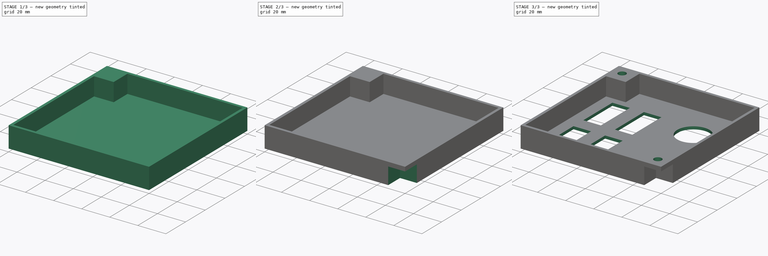
[diagram: build sequence overview — one tinted view per stage of 3, left to right]
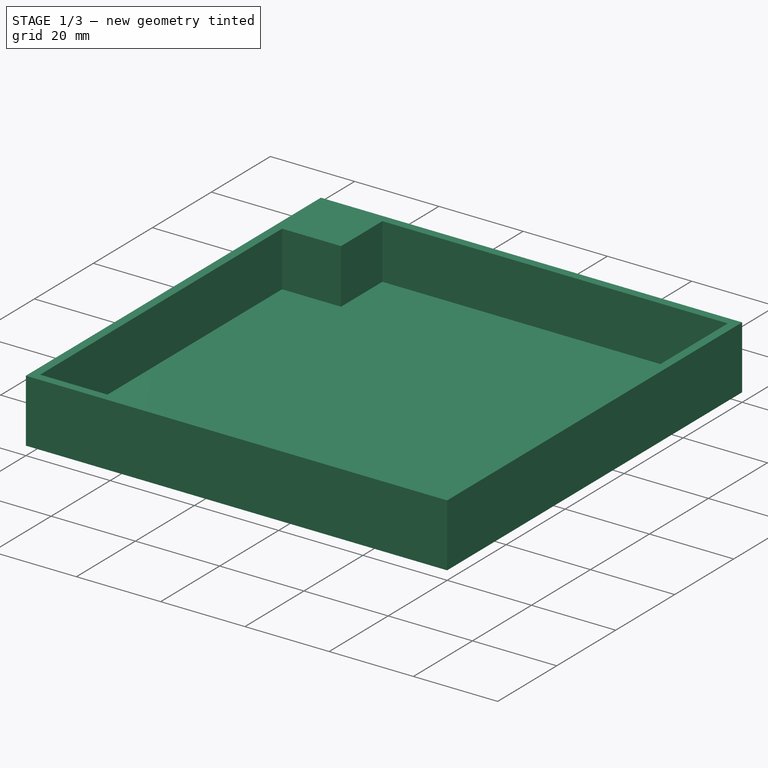
[diagram: stage 1 of 3 — iso view after this stage's code; geometry added in this stage tinted green]
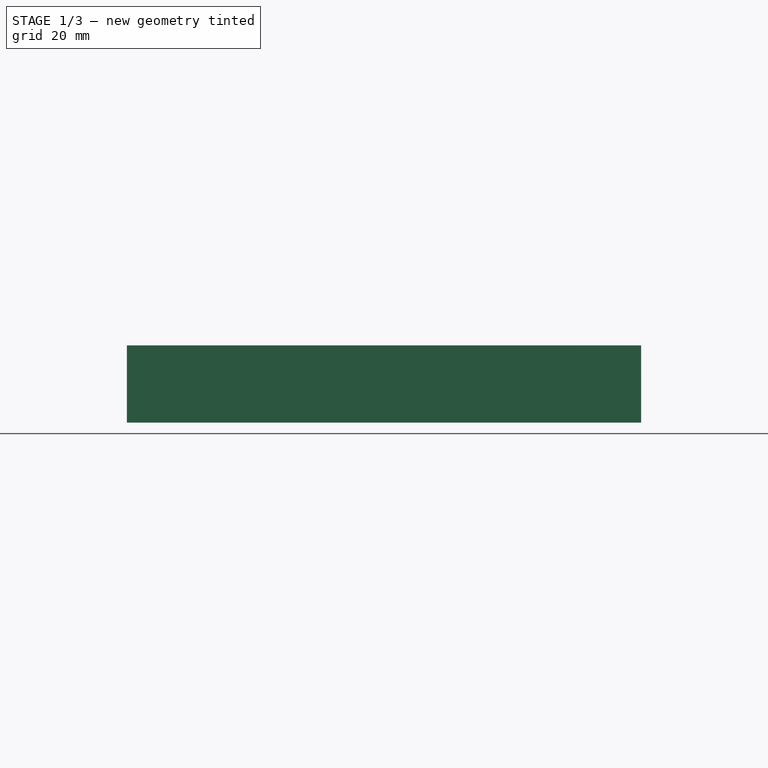
[diagram: stage 1 of 3 — front view after this stage's code; geometry added in this stage tinted green]
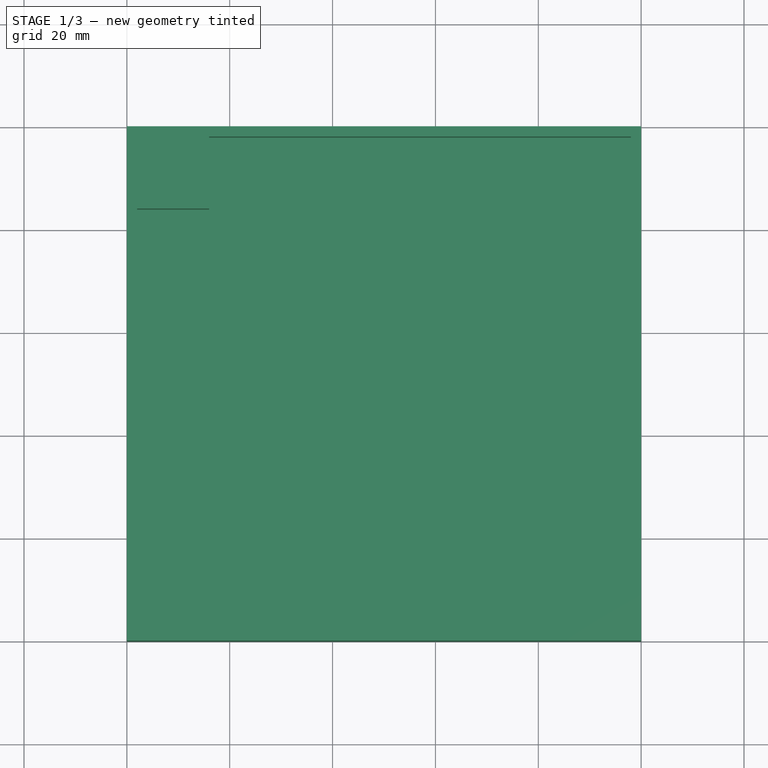
[diagram: stage 1 of 3 — top view after this stage's code; geometry added in this stage tinted green]
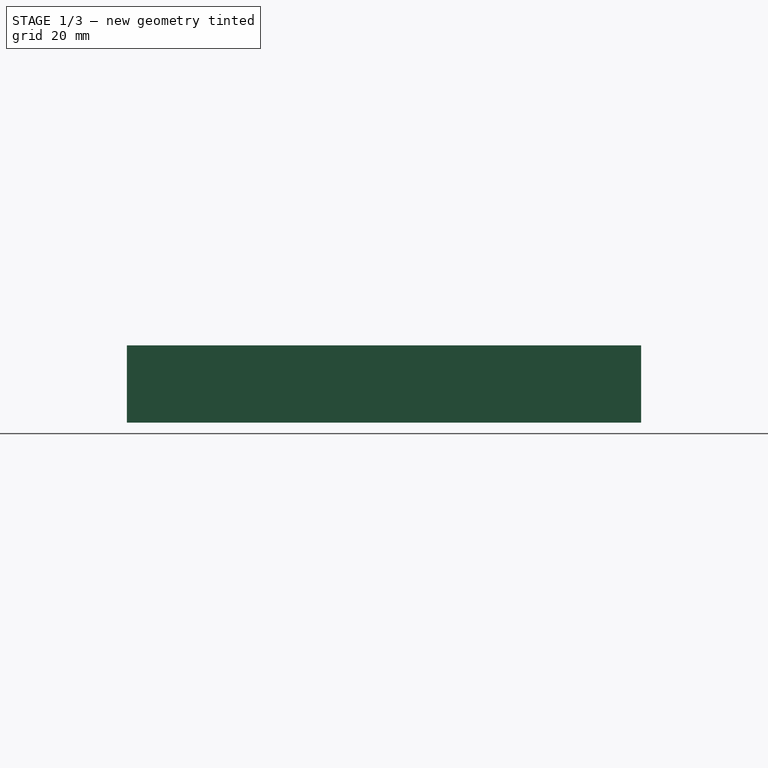
[diagram: stage 1 of 3 — right view after this stage's code; geometry added in this stage tinted green]
FCSTD DOCUMENT  (FreeCAD 0.15R4671 (Git))
Label: ControlPanel
License: All rights reserved
LicenseURL: http://en.wikipedia.org/wiki/All_rights_reserved
objects: Sketcher::SketchObject×5, PartDesign::Pocket×4, PartDesign::Pad×1
note: 15 computed .brp shape members not serialized (recipe doc carries the construction recipe); baked Part::Feature solids carry a one-line shape summary decoded from their .brp

FEATURE [Sketcher::SketchObject] Sketch
  sketch-geometry (4):
    g0: LineSegment StartX=0 StartY=0 StartZ=0 EndX=100 EndY=0 EndZ=0
    g1: LineSegment StartX=100 StartY=0 StartZ=0 EndX=100 EndY=100 EndZ=0
    g2: LineSegment StartX=100 StartY=100 StartZ=0 EndX=0 EndY=100 EndZ=0
    g3: LineSegment StartX=0 StartY=100 StartZ=0 EndX=0 EndY=0 EndZ=0
  constraints (11):
    c: Coincident(g0,g1)
    c: Coincident(g1,g2)
    c: Coincident(g2,g3)
    c: Coincident(g3,g0)
    c: Horizontal(g0)
    c: Horizontal(g2)
    c: Vertical(g1)
    c: Vertical(g3)
    c: Coincident(g0,g-1)
    c: Distance(g3) = 100
    c: Distance(g0) = 100
FEATURE [PartDesign::Pad] Pad
  Length = 15
  Length2 = 100
  Sketch = -> Sketch
  Type = 0
FEATURE [Sketcher::SketchObject] Sketch001
  ExternalGeometry = -> [Pad]
  Placement = pos=(0,0,15) rot=(0,0,1;0rad)
  Support = -> Pad [Face6]
  sketch-geometry (8):
    g0: LineSegment StartX=2 StartY=2 StartZ=0 EndX=2 EndY=84 EndZ=0
    g1: LineSegment StartX=2 StartY=84 StartZ=0 EndX=16 EndY=84 EndZ=0
    g2: LineSegment StartX=16 StartY=84 StartZ=0 EndX=16 EndY=98 EndZ=0
    g3: LineSegment StartX=16 StartY=98 StartZ=0 EndX=98 EndY=98 EndZ=0
    g4: LineSegment StartX=98 StartY=98 StartZ=0 EndX=98 EndY=16 EndZ=0
    g5: LineSegment StartX=98 StartY=16 StartZ=0 EndX=84 EndY=16 EndZ=0
    g6: LineSegment StartX=84 StartY=16 StartZ=0 EndX=84 EndY=2 EndZ=0
    g7: LineSegment StartX=84 StartY=2 StartZ=0 EndX=2 EndY=2 EndZ=0
  constraints (24):
    c: Vertical(g0)
    c: Coincident(g0,g1)
    c: Horizontal(g1)
    c: Coincident(g1,g2)
    c: Vertical(g2)
    c: Coincident(g2,g3)
    c: Horizontal(g3)
    c: Coincident(g3,g4)
    c: Vertical(g4)
    c: Coincident(g4,g5)
    c: Horizontal(g5)
    c: Coincident(g5,g6)
    c: Vertical(g6)
    c: Coincident(g6,g7)
    c: Coincident(g7,g0)
    c: Horizontal(g7)
    c: Distance(g0) = 82
    c: Distance(g1) = 14
    c: Distance(g2) = 14
    c: Distance(g3) = 82
    c: Distance(g4) = 82
    c: Distance(g7) = 82
    c: DistanceX(g-1,g0) = 2
    c: DistanceY(g-1,g0) = 2
FEATURE [PartDesign::Pocket] Pocket
  Length = 13
  Sketch = -> Sketch001
  Type = 0
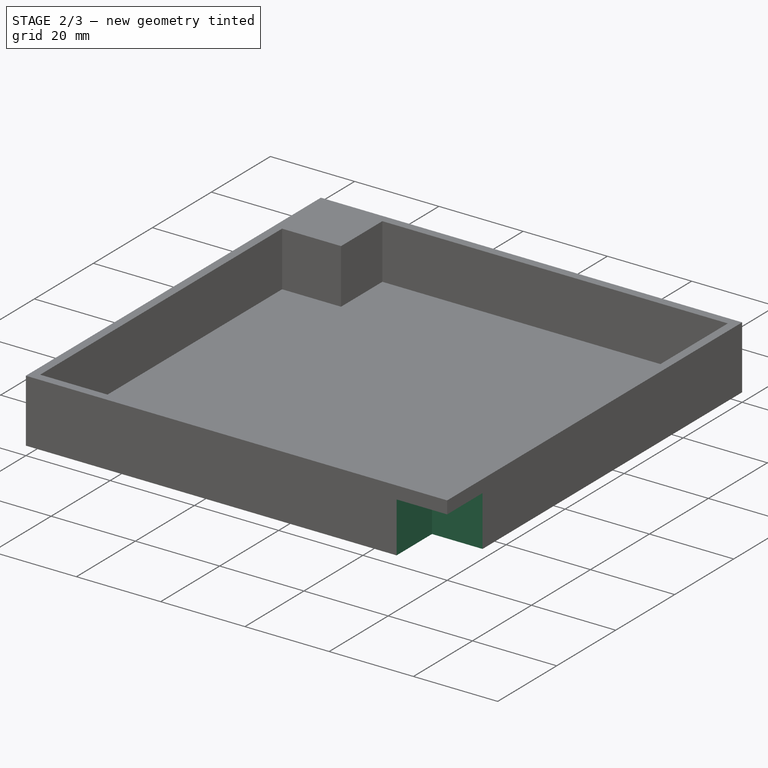
[diagram: stage 2 of 3 — iso view after this stage's code; geometry added in this stage tinted green]
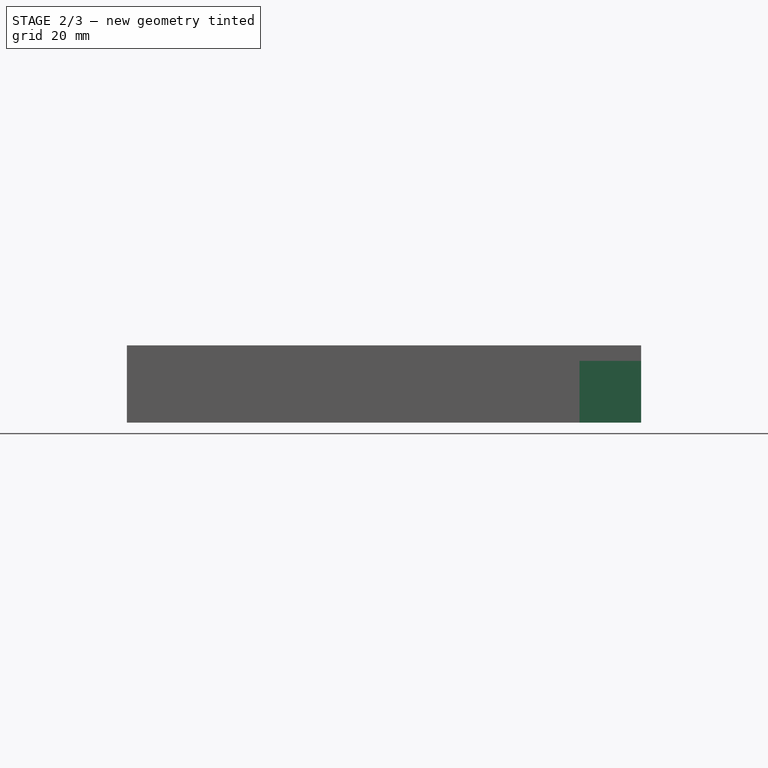
[diagram: stage 2 of 3 — front view after this stage's code; geometry added in this stage tinted green]
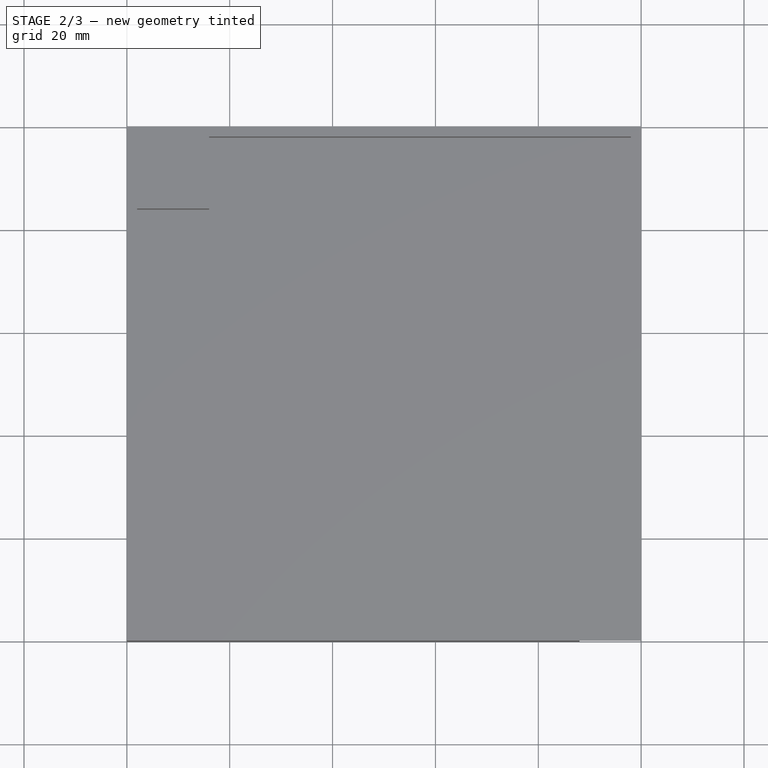
[diagram: stage 2 of 3 — top view after this stage's code; geometry added in this stage tinted green]
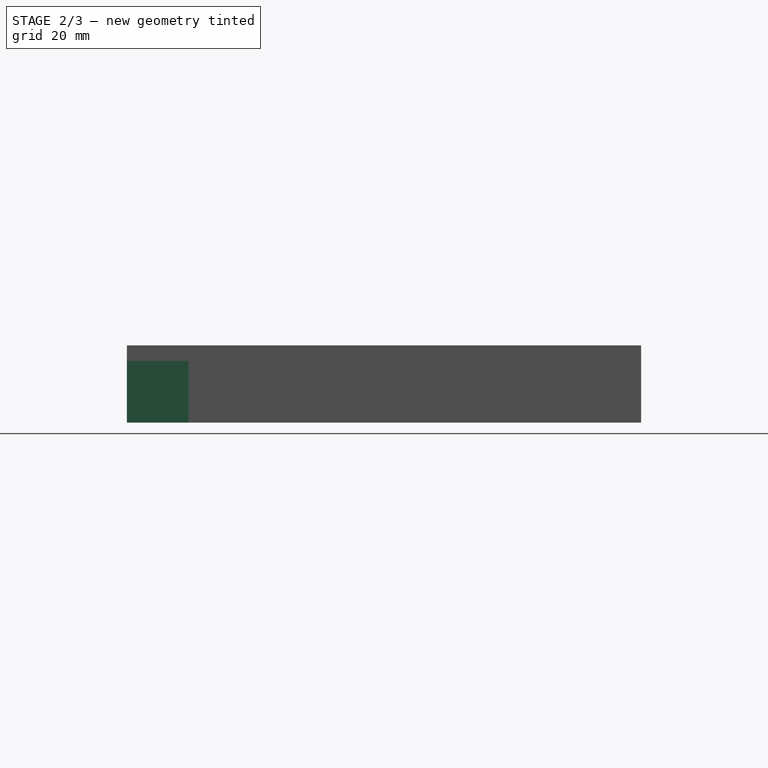
[diagram: stage 2 of 3 — right view after this stage's code; geometry added in this stage tinted green]
FEATURE [Sketcher::SketchObject] Sketch002
  ExternalGeometry = -> [Pocket]
  Placement = pos=(0,0,0) rot=(1,0,0;3.14159rad)
  Support = -> Pocket [Face4]
  sketch-geometry (8):
    g0: LineSegment StartX=100 StartY=0 StartZ=0 EndX=88 EndY=0 EndZ=0
    g1: LineSegment StartX=88 StartY=0 StartZ=0 EndX=88 EndY=-12 EndZ=0
    g2: LineSegment StartX=88 StartY=-12 StartZ=0 EndX=100 EndY=-12 EndZ=0
    g3: LineSegment StartX=100 StartY=-12 StartZ=0 EndX=100 EndY=0 EndZ=0
    g4: LineSegment StartX=0 StartY=-100 StartZ=0 EndX=12 EndY=-100 EndZ=0
    g5: LineSegment StartX=12 StartY=-100 StartZ=0 EndX=12 EndY=-88 EndZ=0
    g6: LineSegment StartX=12 StartY=-88 StartZ=0 EndX=0 EndY=-88 EndZ=0
    g7: LineSegment StartX=0 StartY=-88 StartZ=0 EndX=0 EndY=-100 EndZ=0
  constraints (22):
    c: Coincident(g0,g1)
    c: Coincident(g1,g2)
    c: Coincident(g2,g3)
    c: Coincident(g3,g0)
    c: Horizontal(g0)
    c: Horizontal(g2)
    c: Vertical(g1)
    c: Vertical(g3)
    c: Coincident(g0,g-3)
    c: Coincident(g4,g5)
    c: Coincident(g5,g6)
    c: Coincident(g6,g7)
    c: Coincident(g7,g4)
    c: Horizontal(g4)
    c: Horizontal(g6)
    c: Vertical(g5)
    c: Vertical(g7)
    c: Coincident(g4,g-4)
    c: Distance(g1) = 12
    c: Distance(g2) = 12
    c: Distance(g6) = 12
    c: Distance(g5) = 12
FEATURE [PartDesign::Pocket] Pocket001
  Length = 12
  Sketch = -> Sketch002
  Type = 0
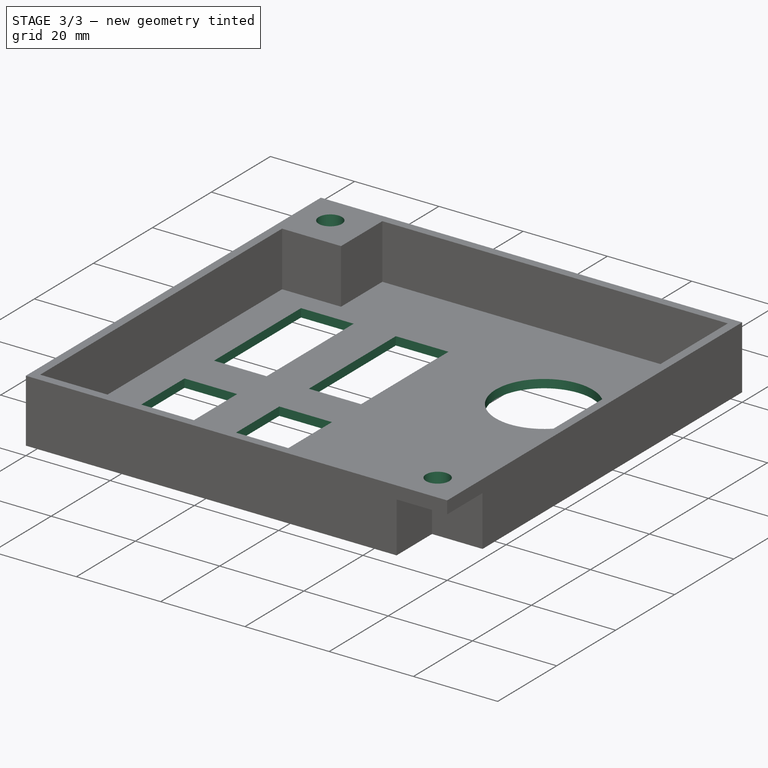
[diagram: stage 3 of 3 — iso view after this stage's code; geometry added in this stage tinted green]
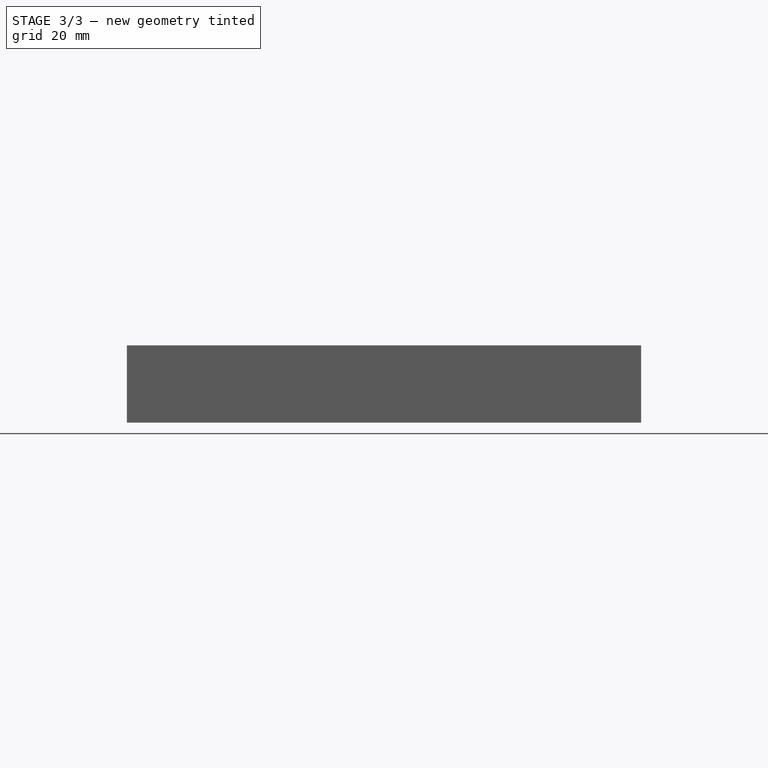
[diagram: stage 3 of 3 — front view after this stage's code; geometry added in this stage tinted green]
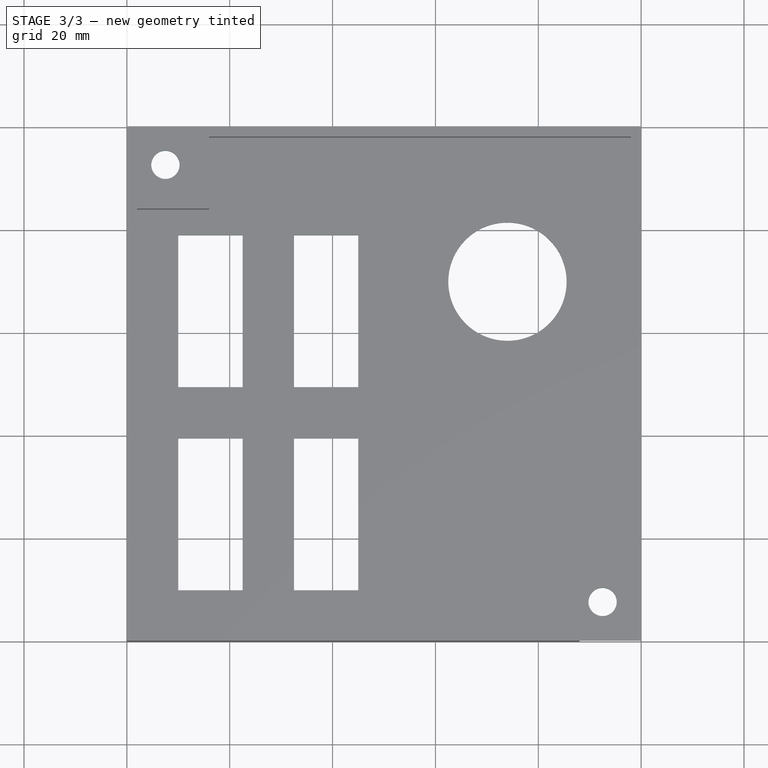
[diagram: stage 3 of 3 — top view after this stage's code; geometry added in this stage tinted green]
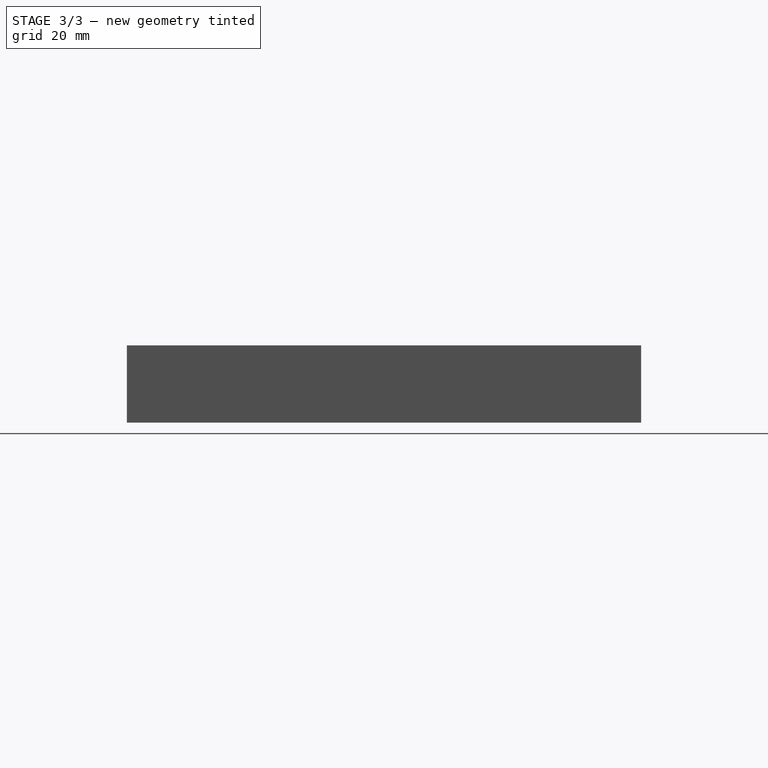
[diagram: stage 3 of 3 — right view after this stage's code; geometry added in this stage tinted green]
FEATURE [Sketcher::SketchObject] Sketch003
  ExternalGeometry = -> [Pocket001]
  Placement = pos=(0,0,15) rot=(0,0,1;0rad)
  Support = -> Pocket001 [Face6]
  sketch-geometry (2):
    g0: Circle CenterX=7.5 CenterY=92.5 CenterZ=0 NormalX=0 NormalY=0 NormalZ=1 Radius=2.75
    g1: Circle CenterX=92.5 CenterY=7.5 CenterZ=0 NormalX=0 NormalY=0 NormalZ=1 Radius=2.75
  constraints (6):
    c: DistanceX(g0,g-3) = -7.5
    c: DistanceY(g-3,g0) = -7.5
    c: Radius(g0) = 2.75
    c: DistanceX(g-4,g1) = -7.5
    c: DistanceY(g1,g-4) = -7.5
    c: Radius(g1) = 2.75
FEATURE [PartDesign::Pocket] Pocket002
  Length = 3
  Sketch = -> Sketch003
  Type = 0
FEATURE [Sketcher::SketchObject] Sketch004
  ExternalGeometry = -> [Pocket002]
  Placement = pos=(0,0,0) rot=(1,0,0;3.14159rad)
  Support = -> Pocket002 [Face2]
  sketch-geometry (17):
    g0: LineSegment StartX=10 StartY=-10 StartZ=0 EndX=22.5 EndY=-10 EndZ=0
    g1: LineSegment StartX=22.5 StartY=-10 StartZ=0 EndX=22.5 EndY=-39.5 EndZ=0
    g2: LineSegment StartX=22.5 StartY=-39.5 StartZ=0 EndX=10 EndY=-39.5 EndZ=0
    g3: LineSegment StartX=10 StartY=-39.5 StartZ=0 EndX=10 EndY=-10 EndZ=0
    g4: LineSegment StartX=10 StartY=-49.5 StartZ=0 EndX=22.5 EndY=-49.5 EndZ=0
    g5: LineSegment StartX=22.5 StartY=-49.5 StartZ=0 EndX=22.5 EndY=-79 EndZ=0
    g6: LineSegment StartX=22.5 StartY=-79 StartZ=0 EndX=10 EndY=-79 EndZ=0
    g7: LineSegment StartX=10 StartY=-79 StartZ=0 EndX=10 EndY=-49.5 EndZ=0
    g8: LineSegment StartX=32.5 StartY=-10 StartZ=0 EndX=45 EndY=-10 EndZ=0
    g9: LineSegment StartX=45 StartY=-10 StartZ=0 EndX=45 EndY=-39.5 EndZ=0
    g10: LineSegment StartX=45 StartY=-39.5 StartZ=0 EndX=32.5 EndY=-39.5 EndZ=0
    g11: LineSegment StartX=32.5 StartY=-39.5 StartZ=0 EndX=32.5 EndY=-10 EndZ=0
    g12: LineSegment StartX=32.5 StartY=-49.5 StartZ=0 EndX=45 EndY=-49.5 EndZ=0
    g13: LineSegment StartX=45 StartY=-49.5 StartZ=0 EndX=45 EndY=-79 EndZ=0
    g14: LineSegment StartX=45 StartY=-79 StartZ=0 EndX=32.5 EndY=-79 EndZ=0
    g15: LineSegment StartX=32.5 StartY=-79 StartZ=0 EndX=32.5 EndY=-49.5 EndZ=0
    g16: Circle CenterX=74 CenterY=-70 CenterZ=0 NormalX=0 NormalY=0 NormalZ=1 Radius=11.5
  constraints (51):
    c: Coincident(g0,g1)
    c: Coincident(g1,g2)
    c: Coincident(g2,g3)
    c: Coincident(g3,g0)
    c: Horizontal(g0)
    c: Horizontal(g2)
    c: Vertical(g1)
    c: Vertical(g3)
    c: Coincident(g4,g5)
    c: Coincident(g5,g6)
    c: Coincident(g6,g7)
    c: Coincident(g7,g4)
    c: Horizontal(g4)
    c: Horizontal(g6)
    c: Vertical(g5)
    c: Vertical(g7)
    c: Coincident(g8,g9)
    c: Coincident(g9,g10)
    c: Coincident(g10,g11)
    c: Coincident(g11,g8)
    c: Horizontal(g8)
    c: Horizontal(g10)
    c: Vertical(g9)
    c: Vertical(g11)
    c: Coincident(g12,g13)
    c: Coincident(g13,g14)
    c: Coincident(g14,g15)
    c: Coincident(g15,g12)
    c: Horizontal(g12)
    c: Horizontal(g14)
    c: Vertical(g13)
    c: Vertical(g15)
    c: Distance(g0) = 12.5
    c: Distance(g3) = 29.5
    c: Distance(g8) = 12.5
    c: Distance(g9) = 29.5
    c: Distance(g6) = 12.5
    c: Distance(g14) = 12.5
    c: Distance(g7) = 29.5
    c: Distance(g13) = 29.5
    c: DistanceY(g-1,g0) = -10
    c: DistanceX(g-1,g0) = 10
    c: DistanceY(g-1,g8) = -10
    c: DistanceX(g0,g8) = 10
    c: DistanceX(g-1,g4) = 10
    c: DistanceY(g9,g12) = -10
    c: DistanceX(g14,g5) = -10
    c: DistanceY(g-6,g16) = 30
    c: DistanceX(g16,g-6) = 26
    c: Radius(g16) = 11.5
    c: DistanceY(g2,g4) = -10
FEATURE [PartDesign::Pocket] Pocket003
  Length = 3
  Sketch = -> Sketch004
  Type = 0
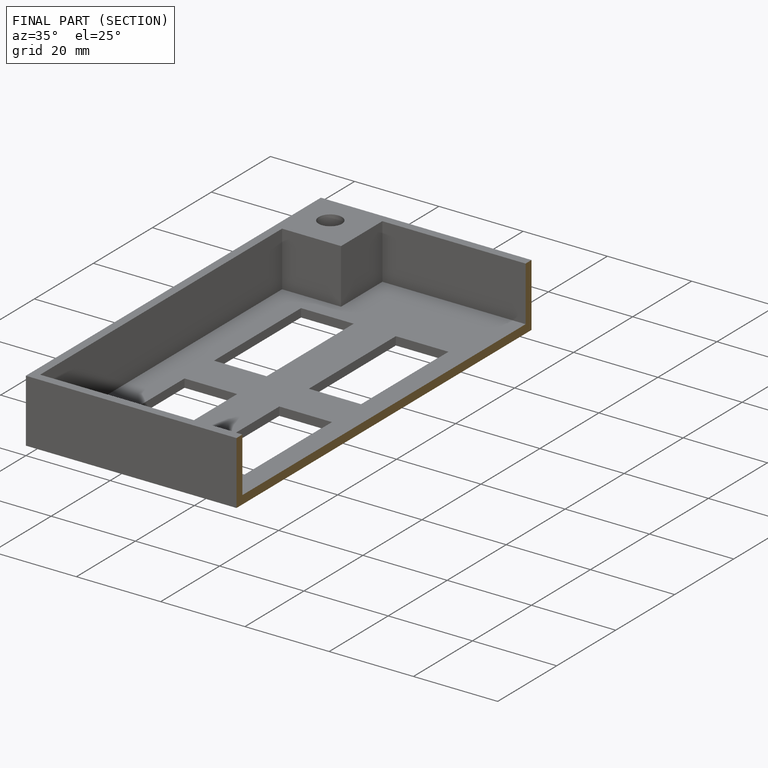
[diagram: finished part — half-section view (interior)]
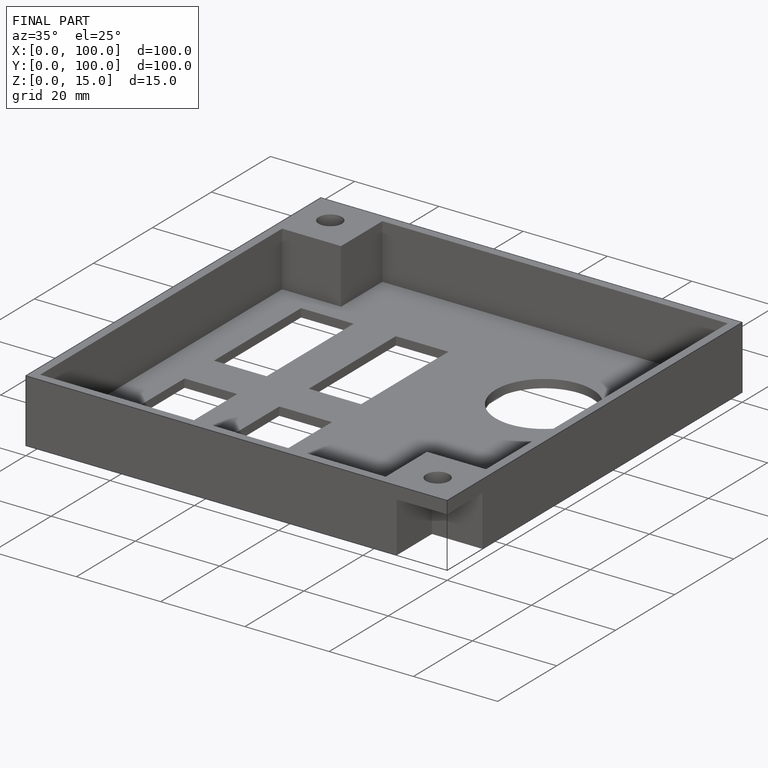
[diagram: finished part — iso view with bounding-box wireframe]
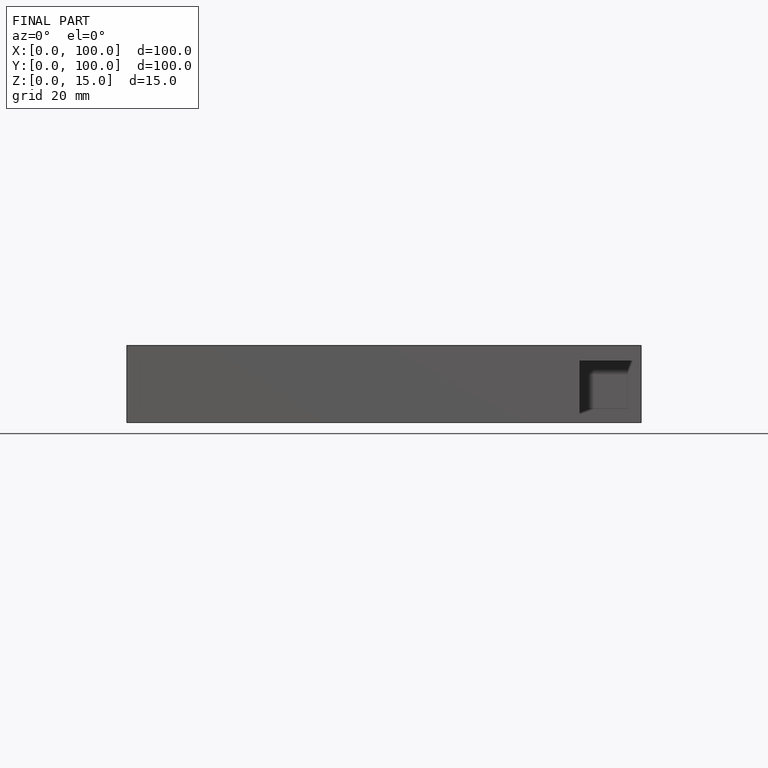
[diagram: finished part — front view with bounding-box wireframe]
